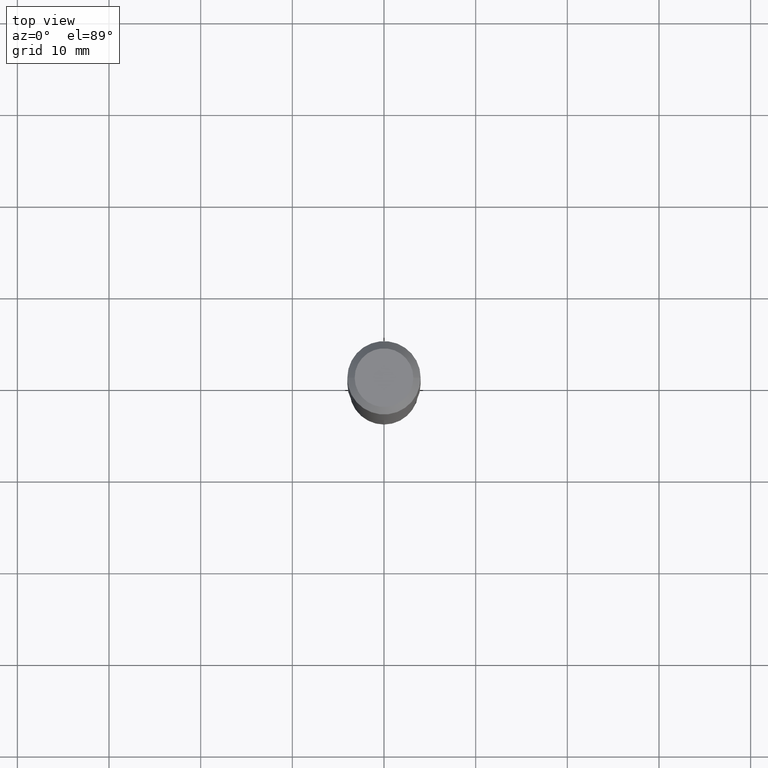
[diagram: clean part render]
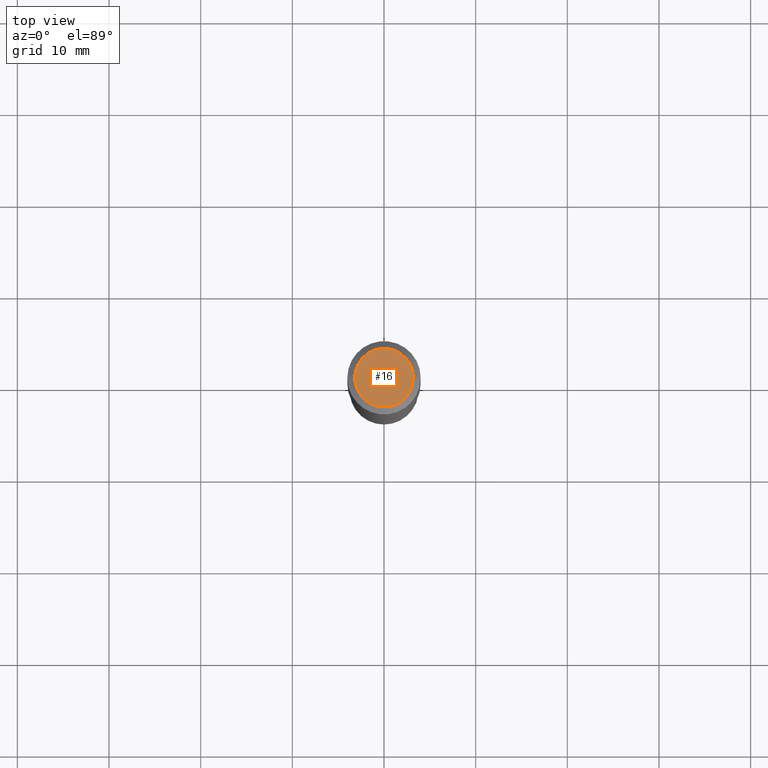
[diagram: same view with one face highlighted and labeled with its STEP entity id]
A machine part, top view. The second image highlights one B-rep face of the part: STEP entity #16.
In plain terms, the highlighted planar face has unit normal (0, -0, -1).
Its self-contained STEP definition (entity closure, byte-faithful):
#16 = ADVANCED_FACE ( 'NONE', ( #401 ), #288, .F. ) ;
#26 = DIRECTION ( 'NONE',  ( -1.000000000000000000, 6.982962677686265922E-15, -4.876176775795935793E-29 ) ) ;
#29 = CARTESIAN_POINT ( 'NONE',  ( 0.1260000000000000009, -1.027466422270894443E-15, 3.860086710919126531E-18 ) ) ;
#42 = EDGE_LOOP ( 'NONE', ( #370, #259 ) ) ;
#62 = DIRECTION ( 'NONE',  ( 1.000000000000000000, -6.982962677686265922E-15, 4.876281427513067258E-29 ) ) ;
#91 = EDGE_CURVE ( 'NONE', #441, #391, #460, .T. ) ;
#100 = CARTESIAN_POINT ( 'NONE',  ( -9.439721640706199741E-47, 1.347742071746726217E-32, 3.860086710912458191E-18 ) ) ;
#131 = DIRECTION ( 'NONE',  ( 1.000000000000000000, -6.982962677686265922E-15, 4.876281427513067258E-29 ) ) ;
#141 = EDGE_CURVE ( 'NONE', #391, #441, #270, .T. ) ;
#168 = CARTESIAN_POINT ( 'NONE',  ( -0.1260000000000000009, 9.348441284752484904E-16, 3.860086710906112637E-18 ) ) ;
#173 = AXIS2_PLACEMENT_3D ( 'NONE', #100, #264, #131 ) ;
#186 = AXIS2_PLACEMENT_3D ( 'NONE', #367, #324, #26 ) ;
#259 = ORIENTED_EDGE ( 'NONE', *, *, #91, .T. ) ;
#264 = DIRECTION ( 'NONE',  ( -2.445468806185136597E-29, 3.491481338843145583E-15, 1.000000000000000000 ) ) ;
#270 = CIRCLE ( 'NONE', #173, 0.1260000000000000009 ) ;
#288 = PLANE ( 'NONE',  #186 ) ;
#293 = AXIS2_PLACEMENT_3D ( 'NONE', #300, #412, #62 ) ;
#300 = CARTESIAN_POINT ( 'NONE',  ( -9.439721640706199741E-47, 1.347742071746726217E-32, 3.860086710912458191E-18 ) ) ;
#324 = DIRECTION ( 'NONE',  ( 2.438088387897960049E-29, -3.491481338843145188E-15, -1.000000000000000000 ) ) ;
#367 = CARTESIAN_POINT ( 'NONE',  ( -4.719860820353099871E-47, 6.738710358733631085E-33, 1.930043355456229096E-18 ) ) ;
#370 = ORIENTED_EDGE ( 'NONE', *, *, #141, .T. ) ;
#391 = VERTEX_POINT ( 'NONE', #168 ) ;
#401 = FACE_OUTER_BOUND ( 'NONE', #42, .T. ) ;
#412 = DIRECTION ( 'NONE',  ( -2.445468806185136597E-29, 3.491481338843145583E-15, 1.000000000000000000 ) ) ;
#441 = VERTEX_POINT ( 'NONE', #29 ) ;
#460 = CIRCLE ( 'NONE', #293, 0.1260000000000000009 ) ;